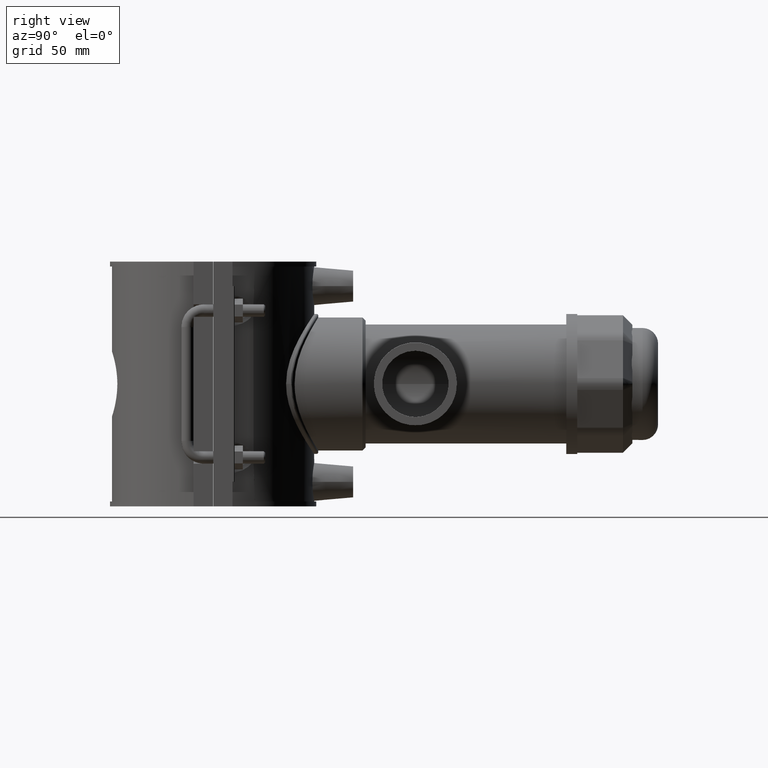
[diagram: clean part render]
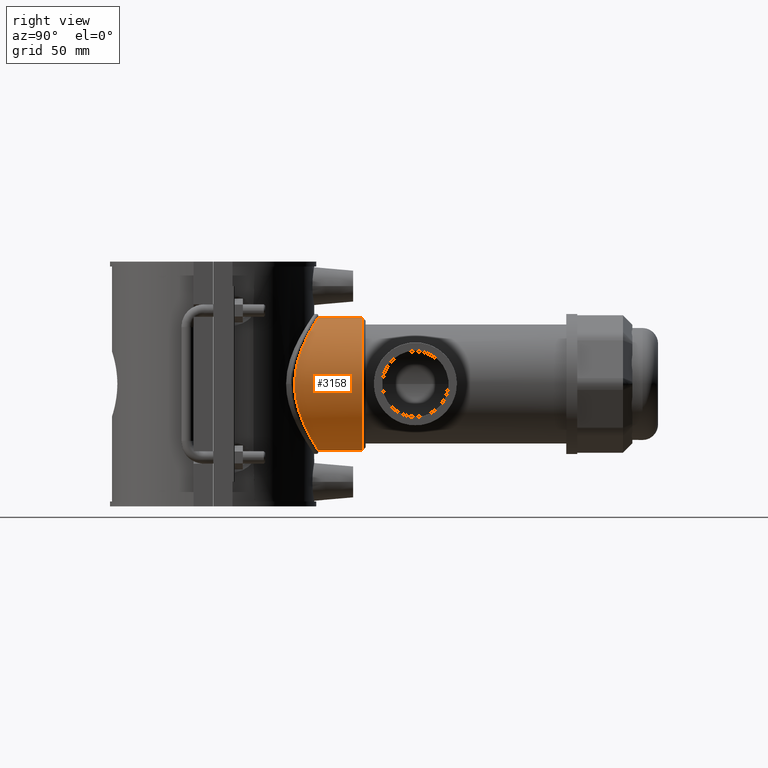
[diagram: same view with one face highlighted and labeled with its STEP entity id]
A machine part, right view. The second image highlights one B-rep face of the part: STEP entity #3158.
In plain terms, the highlighted cylindrical surface (bore or boss wall) has radius 32.0625 mm, axis along (0, 1, 0).
Its self-contained STEP definition (entity closure, byte-faithful):
#624=FACE_BOUND('',#973,.T.);
#682=B_SPLINE_CURVE_WITH_KNOTS('',3,(#4707,#4708,#4709,#4710,#4711,#4712,
#4713,#4714,#4715,#4716,#4717,#4718,#4719,#4720,#4721,#4722,#4723,#4724,
#4725,#4726,#4727,#4728,#4729,#4730,#4731,#4732,#4733,#4734,#4735,#4736,
#4737,#4738,#4739,#4740,#4741,#4742,#4743,#4744,#4745,#4746,#4747,#4748,
#4749,#4750,#4751,#4752,#4753,#4754,#4755,#4756,#4757,#4758,#4759,#4760,
#4761,#4762,#4763,#4764,#4765,#4766,#4767,#4768,#4769,#4770,#4771,#4772),
 .UNSPECIFIED.,.T.,.F.,(4,2,2,2,2,2,2,2,2,2,2,2,2,2,2,2,2,2,2,2,2,2,2,2,
2,2,2,2,2,2,2,2,4),(0.,0.628360994351361,1.25672198870272,1.88508298305408,
2.51344397740544,3.13653587147574,3.75962776554604,4.38271965961633,5.00581155368663,
5.62890344775693,6.25199534182722,6.87508723589752,7.49817912996782,8.12654012431918,
8.75490111867054,9.3832621130219,10.0116231073733,10.6399841017246,11.268345096076,
11.8967060904273,12.5250670847787,13.148158978849,13.7712508729193,14.3943427669896,
15.0174346610599,15.6405265551302,16.2636184492005,16.8867103432708,17.5098022373411,
18.1381632316924,18.7665242260438,19.3948852203952,20.0232462147465),
 .UNSPECIFIED.);
#728=CYLINDRICAL_SURFACE('',#3353,32.0625);
#778=FACE_OUTER_BOUND('',#972,.T.);
#972=EDGE_LOOP('',(#2106));
#973=EDGE_LOOP('',(#2107));
#1219=CIRCLE('',#3354,32.0625);
#1337=VERTEX_POINT('',#4704);
#1338=VERTEX_POINT('',#4706);
#1647=EDGE_CURVE('',#1337,#1337,#1219,.T.);
#1648=EDGE_CURVE('',#1338,#1338,#682,.T.);
#2106=ORIENTED_EDGE('',*,*,#1647,.F.);
#2107=ORIENTED_EDGE('',*,*,#1648,.F.);
#3158=ADVANCED_FACE('',(#778,#624),#728,.T.);
#3353=AXIS2_PLACEMENT_3D('',#4703,#3669,#3670);
#3354=AXIS2_PLACEMENT_3D('',#4705,#3671,#3672);
#3669=DIRECTION('center_axis',(0.,1.,3.06161699786838E-16));
#3670=DIRECTION('ref_axis',(0.,0.,1.));
#3671=DIRECTION('center_axis',(0.,1.,3.06161699786838E-16));
#3672=DIRECTION('ref_axis',(0.,0.,-1.));
#4703=CARTESIAN_POINT('Origin',(0.,36.725,-2.37275317334798E-16));
#4704=CARTESIAN_POINT('',(3.9265237997662E-15,72.,32.0625));
#4705=CARTESIAN_POINT('Origin',(0.,72.,1.05625786426459E-14));
#4706=CARTESIAN_POINT('',(32.0625,39.2744967345223,5.55111512312578E-16));
#4707=CARTESIAN_POINT('Ctrl Pts',(32.0625,39.2744967345223,5.55111512312578E-16));
#4708=CARTESIAN_POINT('Ctrl Pts',(32.0625,39.2744967345223,2.09453664783787));
#4709=CARTESIAN_POINT('Ctrl Pts',(31.8543134197258,39.4472032070929,4.22851295772181));
#4710=CARTESIAN_POINT('Ctrl Pts',(31.0105235645226,40.1139196541631,8.42170031889416));
#4711=CARTESIAN_POINT('Ctrl Pts',(30.3753963474478,40.6061039345306,10.4812972308141));
#4712=CARTESIAN_POINT('Ctrl Pts',(28.7258402205457,41.7893075648367,14.3996083222355));
#4713=CARTESIAN_POINT('Ctrl Pts',(27.710044263448,42.479537511854,16.2624594282473));
#4714=CARTESIAN_POINT('Ctrl Pts',(25.3813887556858,43.9106224600712,19.7002346445669));
#4715=CARTESIAN_POINT('Ctrl Pts',(24.0679870529102,44.6504111670735,21.2752352906772));
#4716=CARTESIAN_POINT('Ctrl Pts',(21.2869445543231,46.0407700485153,24.0562777892643));
#4717=CARTESIAN_POINT('Ctrl Pts',(19.7181117203239,46.7447237131586,25.3676408439805));
#4718=CARTESIAN_POINT('Ctrl Pts',(16.2790639798731,48.0506524483881,27.700418915249));
#4719=CARTESIAN_POINT('Ctrl Pts',(14.4086520233287,48.6518303424097,28.7219896330531));
#4720=CARTESIAN_POINT('Ctrl Pts',(10.473281220729,49.6479631367134,30.3788142788931));
#4721=CARTESIAN_POINT('Ctrl Pts',(8.40422800649635,50.0433230281396,31.0154174091996));
#4722=CARTESIAN_POINT('Ctrl Pts',(4.20612647830989,50.569494046861,31.8574271643325));
#4723=CARTESIAN_POINT('Ctrl Pts',(2.07697298023432,50.7,32.0625));
#4724=CARTESIAN_POINT('Ctrl Pts',(-2.07697298023432,50.7,32.0625));
#4725=CARTESIAN_POINT('Ctrl Pts',(-4.20612647830989,50.569494046861,31.8574271643325));
#4726=CARTESIAN_POINT('Ctrl Pts',(-8.40422800649635,50.0433230281396,31.0154174091996));
#4727=CARTESIAN_POINT('Ctrl Pts',(-10.473281220729,49.6479631367134,30.3788142788931));
#4728=CARTESIAN_POINT('Ctrl Pts',(-14.4086520233287,48.6518303424097,28.7219896330531));
#4729=CARTESIAN_POINT('Ctrl Pts',(-16.2790639798731,48.0506524483881,27.700418915249));
#4730=CARTESIAN_POINT('Ctrl Pts',(-19.7181117203239,46.7447237131586,25.3676408439805));
#4731=CARTESIAN_POINT('Ctrl Pts',(-21.2869445543231,46.0407700485153,24.0562777892643));
#4732=CARTESIAN_POINT('Ctrl Pts',(-24.0679870529102,44.6504111670735,21.2752352906772));
#4733=CARTESIAN_POINT('Ctrl Pts',(-25.3813887556858,43.9106224600712,19.7002346445669));
#4734=CARTESIAN_POINT('Ctrl Pts',(-27.710044263448,42.479537511854,16.2624594282473));
#4735=CARTESIAN_POINT('Ctrl Pts',(-28.7258402205457,41.7893075648367,14.3996083222355));
#4736=CARTESIAN_POINT('Ctrl Pts',(-30.3753963474478,40.6061039345306,10.4812972308142));
#4737=CARTESIAN_POINT('Ctrl Pts',(-31.0105235645226,40.1139196541631,8.42170031889417));
#4738=CARTESIAN_POINT('Ctrl Pts',(-31.8543134197259,39.4472032070929,4.22851295772182));
#4739=CARTESIAN_POINT('Ctrl Pts',(-32.0625,39.2744967345223,2.09453664783787));
#4740=CARTESIAN_POINT('Ctrl Pts',(-32.0625,39.2744967345223,-2.09453664783787));
#4741=CARTESIAN_POINT('Ctrl Pts',(-31.8543134197258,39.4472032070929,-4.22851295772182));
#4742=CARTESIAN_POINT('Ctrl Pts',(-31.0105235645226,40.1139196541631,-8.42170031889417));
#4743=CARTESIAN_POINT('Ctrl Pts',(-30.3753963474478,40.6061039345306,-10.4812972308141));
#4744=CARTESIAN_POINT('Ctrl Pts',(-28.7258402205457,41.7893075648367,-14.3996083222355));
#4745=CARTESIAN_POINT('Ctrl Pts',(-27.710044263448,42.479537511854,-16.2624594282473));
#4746=CARTESIAN_POINT('Ctrl Pts',(-25.3813887556858,43.9106224600712,-19.7002346445669));
#4747=CARTESIAN_POINT('Ctrl Pts',(-24.0679870529102,44.6504111670735,-21.2752352906772));
#4748=CARTESIAN_POINT('Ctrl Pts',(-21.2869445543231,46.0407700485153,-24.0562777892643));
#4749=CARTESIAN_POINT('Ctrl Pts',(-19.7181117203239,46.7447237131586,-25.3676408439805));
#4750=CARTESIAN_POINT('Ctrl Pts',(-16.2790639798731,48.0506524483881,-27.700418915249));
#4751=CARTESIAN_POINT('Ctrl Pts',(-14.4086520233287,48.6518303424097,-28.7219896330531));
#4752=CARTESIAN_POINT('Ctrl Pts',(-10.473281220729,49.6479631367134,-30.3788142788931));
#4753=CARTESIAN_POINT('Ctrl Pts',(-8.40422800649635,50.0433230281396,-31.0154174091996));
#4754=CARTESIAN_POINT('Ctrl Pts',(-4.20612647830989,50.569494046861,-31.8574271643325));
#4755=CARTESIAN_POINT('Ctrl Pts',(-2.07697298023433,50.7,-32.0625));
#4756=CARTESIAN_POINT('Ctrl Pts',(2.07697298023432,50.7,-32.0625));
#4757=CARTESIAN_POINT('Ctrl Pts',(4.20612647830989,50.569494046861,-31.8574271643325));
#4758=CARTESIAN_POINT('Ctrl Pts',(8.40422800649635,50.0433230281396,-31.0154174091996));
#4759=CARTESIAN_POINT('Ctrl Pts',(10.473281220729,49.6479631367134,-30.3788142788931));
#4760=CARTESIAN_POINT('Ctrl Pts',(14.4086520233288,48.6518303424097,-28.7219896330531));
#4761=CARTESIAN_POINT('Ctrl Pts',(16.2790639798731,48.0506524483881,-27.700418915249));
#4762=CARTESIAN_POINT('Ctrl Pts',(19.7181117203239,46.7447237131586,-25.3676408439805));
#4763=CARTESIAN_POINT('Ctrl Pts',(21.2869445543231,46.0407700485153,-24.0562777892643));
#4764=CARTESIAN_POINT('Ctrl Pts',(24.0679870529102,44.6504111670735,-21.2752352906772));
#4765=CARTESIAN_POINT('Ctrl Pts',(25.3813887556858,43.9106224600712,-19.7002346445669));
#4766=CARTESIAN_POINT('Ctrl Pts',(27.710044263448,42.479537511854,-16.2624594282473));
#4767=CARTESIAN_POINT('Ctrl Pts',(28.7258402205457,41.7893075648367,-14.3996083222355));
#4768=CARTESIAN_POINT('Ctrl Pts',(30.3753963474478,40.6061039345306,-10.4812972308141));
#4769=CARTESIAN_POINT('Ctrl Pts',(31.0105235645226,40.1139196541631,-8.42170031889416));
#4770=CARTESIAN_POINT('Ctrl Pts',(31.8543134197258,39.4472032070929,-4.22851295772181));
#4771=CARTESIAN_POINT('Ctrl Pts',(32.0625,39.2744967345223,-2.09453664783787));
#4772=CARTESIAN_POINT('Ctrl Pts',(32.0625,39.2744967345223,0.));